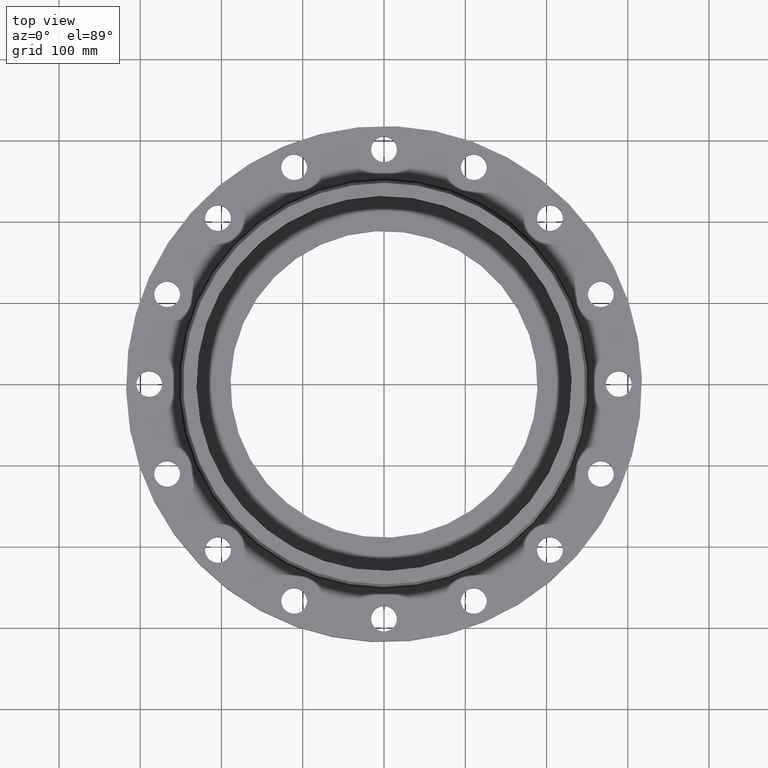
[diagram: clean part render]
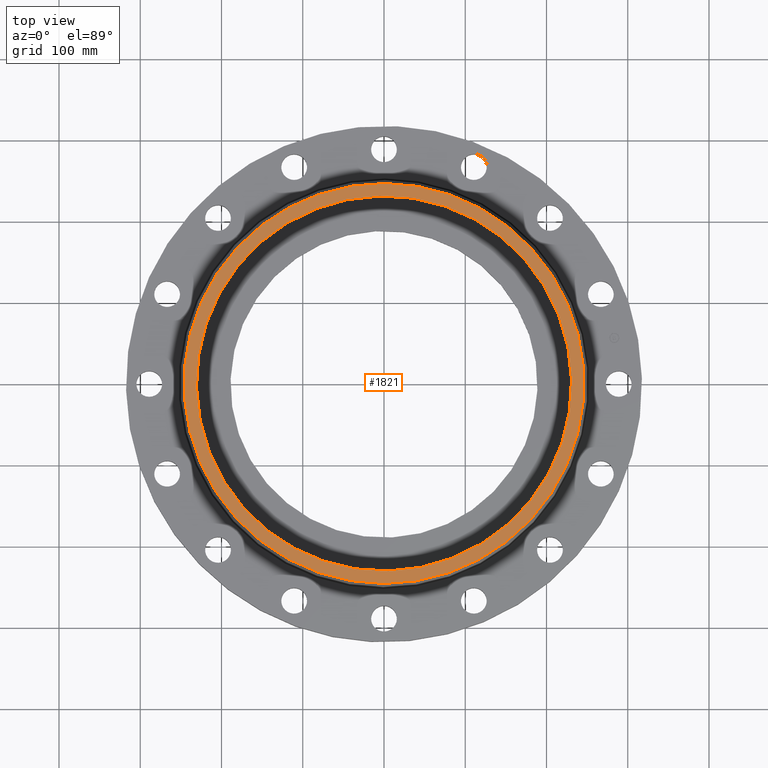
[diagram: same view with one face highlighted and labeled with its STEP entity id]
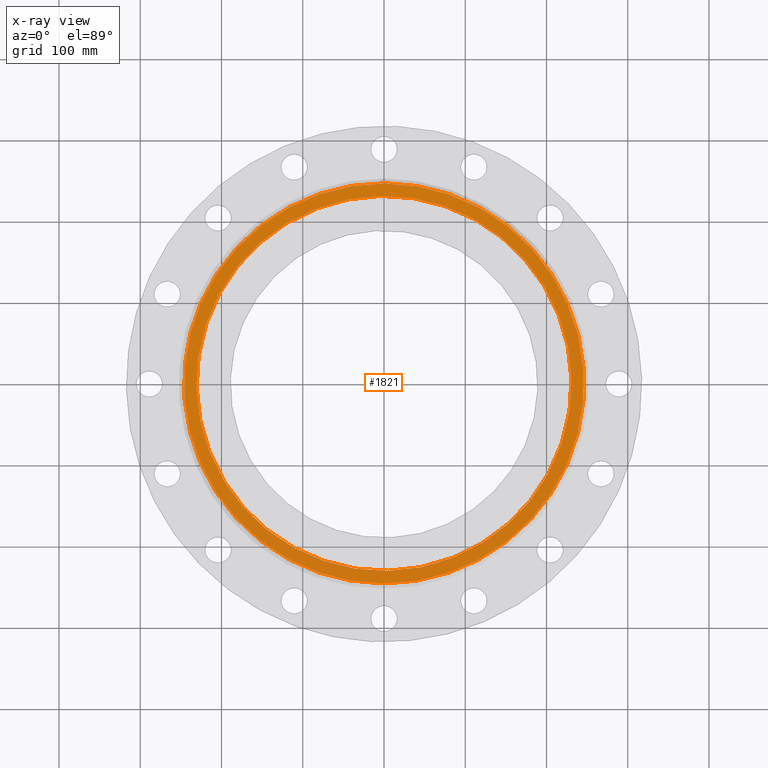
[diagram: x-ray of the same camera — body ghosted, the highlighted face saturated]
A machine part, top view. The second image highlights one B-rep face of the part: STEP entity #1821.
The next image is the same camera in x-ray: the body ghosted, the highlighted face saturated — about 0% of this face is hidden behind the body in this view.
In plain terms, the highlighted planar face has unit normal (0, 0, -1).
Its self-contained STEP definition (entity closure, byte-faithful):
#1742=AXIS2_PLACEMENT_3D('Circle Axis2P3D',#1740,#1741,$) ;
#1761=AXIS2_PLACEMENT_3D('Circle Axis2P3D',#1759,#1760,$) ;
#1797=AXIS2_PLACEMENT_3D('Plane Axis2P3D',#1794,#1795,#1796) ;
#1805=AXIS2_PLACEMENT_3D('Circle Axis2P3D',#1803,#1804,$) ;
#1814=AXIS2_PLACEMENT_3D('Circle Axis2P3D',#1812,#1813,$) ;
#1737=CARTESIAN_POINT('Vertex',(4.64667276957,8.50567745151,2.62000000001)) ;
#1740=CARTESIAN_POINT('Axis2P3D Location',(0.,0.,2.62000000001)) ;
#1744=CARTESIAN_POINT('Vertex',(-4.64667276957,-8.50567745151,2.62000000001)) ;
#1759=CARTESIAN_POINT('Axis2P3D Location',(0.,0.,2.62000000001)) ;
#1794=CARTESIAN_POINT('Axis2P3D Location',(0.,9.69216780377,2.62000000001)) ;
#1803=CARTESIAN_POINT('Axis2P3D Location',(-2.79741234551E-016,0.,2.62000000001)) ;
#1807=CARTESIAN_POINT('Vertex',(-7.97722548762,4.35797814593,2.62000000001)) ;
#1809=CARTESIAN_POINT('Vertex',(7.97722548762,-4.35797814593,2.62000000001)) ;
#1812=CARTESIAN_POINT('Axis2P3D Location',(5.59482469102E-016,-4.47585975282E-015,2.62000000001)) ;
#1741=DIRECTION('Axis2P3D Direction',(0.,0.,-0.0393700787402)) ;
#1760=DIRECTION('Axis2P3D Direction',(0.,0.,-0.0393700787402)) ;
#1795=DIRECTION('Axis2P3D Direction',(0.,0.,-0.0393700787402)) ;
#1796=DIRECTION('Axis2P3D XDirection',(0.0393700787402,0.,0.)) ;
#1804=DIRECTION('Axis2P3D Direction',(0.,0.,-0.0393700787402)) ;
#1813=DIRECTION('Axis2P3D Direction',(0.,0.,-0.0393700787402)) ;
#1800=ORIENTED_EDGE('',*,*,#1746,.F.) ;
#1801=ORIENTED_EDGE('',*,*,#1763,.F.) ;
#1818=ORIENTED_EDGE('',*,*,#1811,.T.) ;
#1819=ORIENTED_EDGE('',*,*,#1816,.T.) ;
#1820=FACE_BOUND('',#1817,.T.) ;
#1821=ADVANCED_FACE('PartBody',(#1802,#1820),#1798,.F.) ;
#1743=CIRCLE('generated circle',#1742,9.69216780377) ;
#1762=CIRCLE('generated circle',#1761,9.69216780377) ;
#1806=CIRCLE('generated circle',#1805,9.09000000004) ;
#1815=CIRCLE('generated circle',#1814,9.09000000004) ;
#1746=EDGE_CURVE('',#1738,#1745,#1743,.T.) ;
#1763=EDGE_CURVE('',#1745,#1738,#1762,.T.) ;
#1811=EDGE_CURVE('',#1808,#1810,#1806,.T.) ;
#1816=EDGE_CURVE('',#1810,#1808,#1815,.T.) ;
#1799=EDGE_LOOP('',(#1800,#1801)) ;
#1817=EDGE_LOOP('',(#1818,#1819)) ;
#1802=FACE_OUTER_BOUND('',#1799,.T.) ;
#1798=PLANE('',#1797) ;
#1738=VERTEX_POINT('',#1737) ;
#1745=VERTEX_POINT('',#1744) ;
#1808=VERTEX_POINT('',#1807) ;
#1810=VERTEX_POINT('',#1809) ;